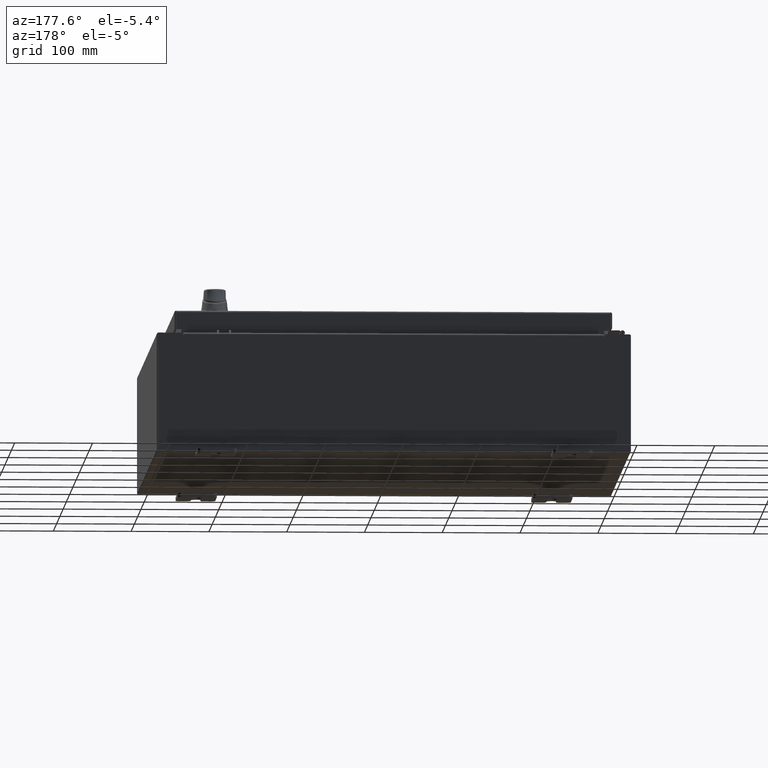
[diagram: clean part render]
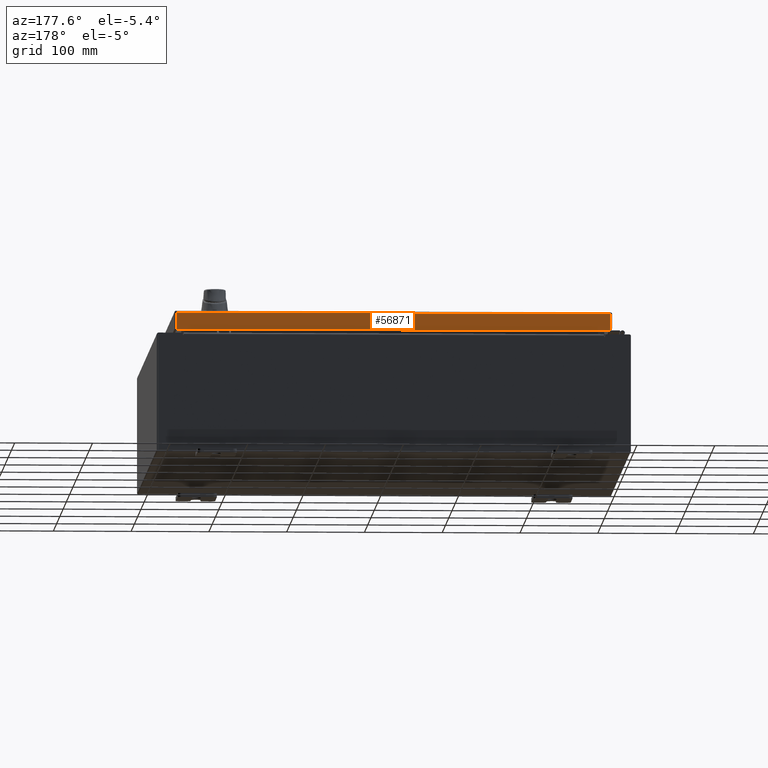
[diagram: same view with one face highlighted and labeled with its STEP entity id]
A machine part, auxiliary view. The second image highlights one B-rep face of the part: STEP entity #56871.
In plain terms, the highlighted planar face has unit normal (0, -1, -0).
Its self-contained STEP definition (entity closure, byte-faithful):
#12031 = LINE ( 'NONE', #26410, #82001 ) ;
#26410 = CARTESIAN_POINT ( 'NONE',  ( -11.07800000000000300, 11.09399999999999800, -0.08770000000000008300 ) ) ;
#28202 = EDGE_CURVE ( 'NONE', #84309, #62384, #76559, .T. ) ;
#29018 = DIRECTION ( 'NONE',  ( 0.0000000000000000000, 2.532419924601858200E-015, -1.000000000000000000 ) ) ;
#32706 = VECTOR ( 'NONE', #65552, 39.37007874015748100 ) ;
#38525 = EDGE_LOOP ( 'NONE', ( #97629, #64491, #40703, #48456 ) ) ;
#40703 = ORIENTED_EDGE ( 'NONE', *, *, #28202, .F. ) ;
#41542 = VECTOR ( 'NONE', #102781, 39.37007874015748100 ) ;
#42801 = CARTESIAN_POINT ( 'NONE',  ( -10.98915786437626900, 11.09399999999999800, -0.07469999999999980800 ) ) ;
#45668 = VERTEX_POINT ( 'NONE', #91661 ) ;
#47931 = CARTESIAN_POINT ( 'NONE',  ( -11.07800000000000300, 11.09399999999999900, -0.9377000000000025300 ) ) ;
#48456 = ORIENTED_EDGE ( 'NONE', *, *, #100962, .F. ) ;
#53196 = CARTESIAN_POINT ( 'NONE',  ( 10.98915786437626500, 11.09399999999999900, -0.9376999999999997600 ) ) ;
#54751 = CARTESIAN_POINT ( 'NONE',  ( -3.464089127225218900E-030, 11.09399999999999800, 2.835548029954458900E-014 ) ) ;
#56871 = ADVANCED_FACE ( 'NONE', ( #96805 ), #72728, .F. ) ;
#58548 = VECTOR ( 'NONE', #112508, 39.37007874015748100 ) ;
#62384 = VERTEX_POINT ( 'NONE', #53196 ) ;
#64491 = ORIENTED_EDGE ( 'NONE', *, *, #82177, .T. ) ;
#64830 = LINE ( 'NONE', #67514, #41542 ) ;
#65552 = DIRECTION ( 'NONE',  ( 1.000000000000000000, -4.379057701015054300E-047, 1.233005954894504400E-016 ) ) ;
#66161 = AXIS2_PLACEMENT_3D ( 'NONE', #54751, #81561, #29018 ) ;
#67344 = EDGE_CURVE ( 'NONE', #45668, #113310, #12031, .T. ) ;
#67514 = CARTESIAN_POINT ( 'NONE',  ( 10.98915786437626500, 11.09399999999999800, 2.835548029954458900E-014 ) ) ;
#72728 = PLANE ( 'NONE',  #66161 ) ;
#76559 = LINE ( 'NONE', #47931, #32706 ) ;
#81561 = DIRECTION ( 'NONE',  ( 3.122488847327582500E-031, -1.000000000000000000, -2.532419924601858200E-015 ) ) ;
#81862 = LINE ( 'NONE', #42801, #58548 ) ;
#82001 = VECTOR ( 'NONE', #87779, 39.37007874015748100 ) ;
#82177 = EDGE_CURVE ( 'NONE', #45668, #62384, #64830, .T. ) ;
#84309 = VERTEX_POINT ( 'NONE', #107172 ) ;
#87779 = DIRECTION ( 'NONE',  ( -1.000000000000000000, -3.122488847327583000E-031, -7.817847125977018100E-046 ) ) ;
#91661 = CARTESIAN_POINT ( 'NONE',  ( 10.98915786437626500, 11.09399999999999800, -0.08770000000000008300 ) ) ;
#96805 = FACE_OUTER_BOUND ( 'NONE', #38525, .T. ) ;
#97629 = ORIENTED_EDGE ( 'NONE', *, *, #67344, .F. ) ;
#100962 = EDGE_CURVE ( 'NONE', #113310, #84309, #81862, .T. ) ;
#102781 = DIRECTION ( 'NONE',  ( 0.0000000000000000000, 2.532419924601858200E-015, -1.000000000000000000 ) ) ;
#107172 = CARTESIAN_POINT ( 'NONE',  ( -10.98915786437626900, 11.09399999999999900, -0.9377000000000025300 ) ) ;
#109140 = CARTESIAN_POINT ( 'NONE',  ( -10.98915786437626900, 11.09399999999999800, -0.08770000000000008300 ) ) ;
#112508 = DIRECTION ( 'NONE',  ( -0.0000000000000000000, 2.532419924601858200E-015, -1.000000000000000000 ) ) ;
#113310 = VERTEX_POINT ( 'NONE', #109140 ) ;